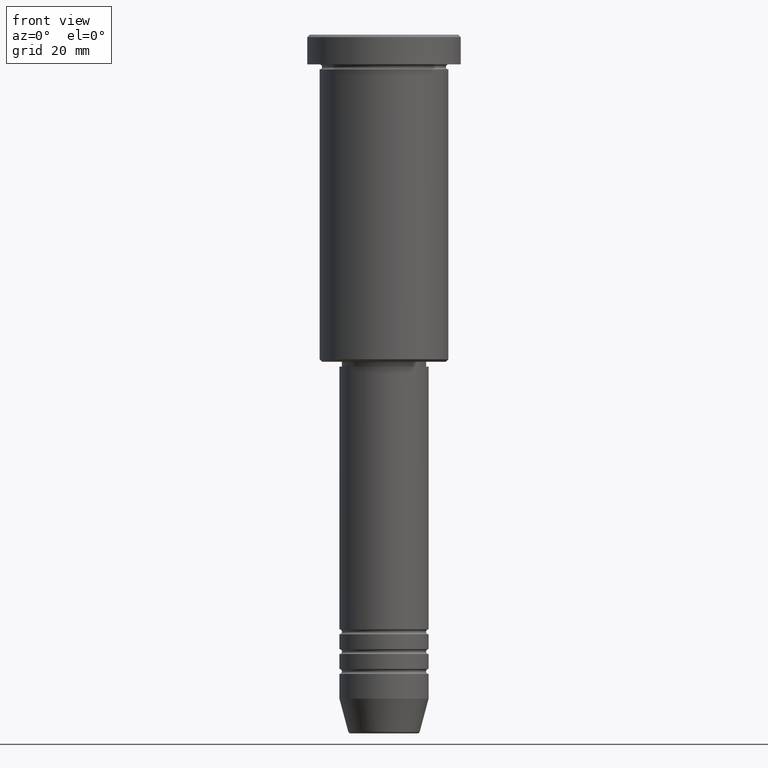
[diagram: clean part render]
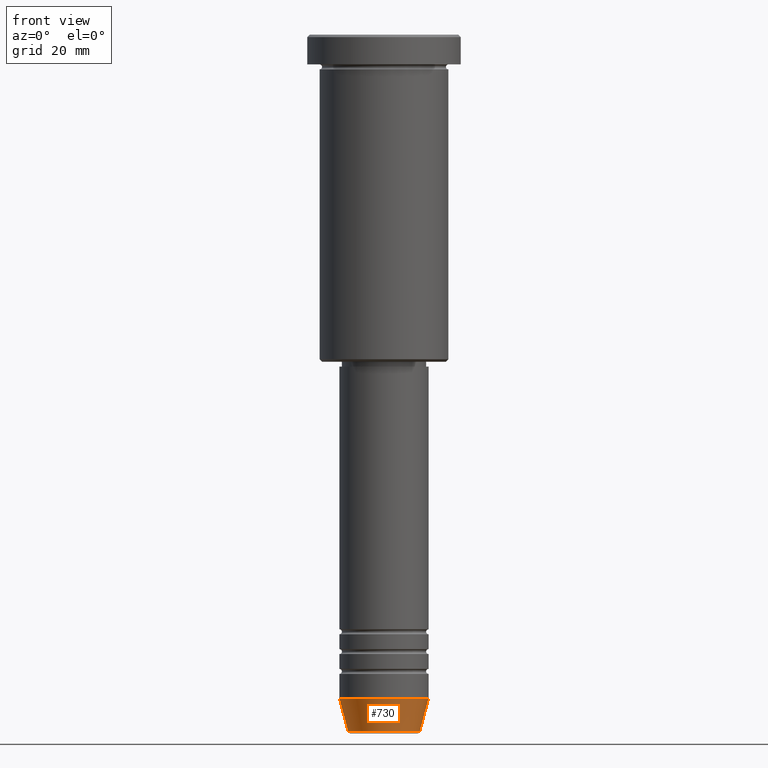
[diagram: same view with one face highlighted and labeled with its STEP entity id]
A machine part, front view. The second image highlights one B-rep face of the part: STEP entity #730.
In plain terms, the highlighted conical surface has half-angle 15 deg.
Its self-contained STEP definition (entity closure, byte-faithful):
#10 = CIRCLE ( 'NONE', #48, 7.223655072137188604 ) ;
#38 = VERTEX_POINT ( 'NONE', #823 ) ;
#48 = AXIS2_PLACEMENT_3D ( 'NONE', #744, #271, #482 ) ;
#64 = CARTESIAN_POINT ( 'NONE',  ( 0.000000000000000000, 0.000000000000000000, -134.0000000000000000 ) ) ;
#83 = EDGE_CURVE ( 'NONE', #404, #38, #848, .T. ) ;
#115 = ORIENTED_EDGE ( 'NONE', *, *, #83, .F. ) ;
#234 = CARTESIAN_POINT ( 'NONE',  ( -9.000000000000000000, 1.102182119232617714E-15, -134.0000000000000000 ) ) ;
#256 = VECTOR ( 'NONE', #1043, 1000.000000000000000 ) ;
#271 = DIRECTION ( 'NONE',  ( -0.000000000000000000, -0.000000000000000000, 1.000000000000000000 ) ) ;
#290 = DIRECTION ( 'NONE',  ( 1.000000000000000000, 0.000000000000000000, 0.000000000000000000 ) ) ;
#302 = EDGE_LOOP ( 'NONE', ( #1179, #592, #1105, #115 ) ) ;
#325 = DIRECTION ( 'NONE',  ( -0.2588190451025213501, 3.169619151431772337E-17, 0.9659258262890680902 ) ) ;
#404 = VERTEX_POINT ( 'NONE', #791 ) ;
#417 = DIRECTION ( 'NONE',  ( -0.000000000000000000, -0.000000000000000000, 1.000000000000000000 ) ) ;
#418 = CARTESIAN_POINT ( 'NONE',  ( 7.223655072137188604, 0.000000000000000000, -140.6294095225512990 ) ) ;
#428 = AXIS2_PLACEMENT_3D ( 'NONE', #645, #417, #505 ) ;
#464 = EDGE_CURVE ( 'NONE', #572, #404, #1048, .T. ) ;
#482 = DIRECTION ( 'NONE',  ( 1.000000000000000000, 0.000000000000000000, 0.000000000000000000 ) ) ;
#505 = DIRECTION ( 'NONE',  ( 1.000000000000000000, 0.000000000000000000, 0.000000000000000000 ) ) ;
#525 = CARTESIAN_POINT ( 'NONE',  ( -7.223655072137189492, 9.934123627281765110E-16, -140.6294095225512990 ) ) ;
#572 = VERTEX_POINT ( 'NONE', #525 ) ;
#586 = EDGE_CURVE ( 'NONE', #572, #1110, #10, .T. ) ;
#592 = ORIENTED_EDGE ( 'NONE', *, *, #586, .T. ) ;
#637 = CONICAL_SURFACE ( 'NONE', #1040, 9.000000000000000000, 0.2617993877991500740 ) ;
#645 = CARTESIAN_POINT ( 'NONE',  ( 0.000000000000000000, 0.000000000000000000, -134.0000000000000000 ) ) ;
#675 = LINE ( 'NONE', #1022, #256 ) ;
#730 = ADVANCED_FACE ( 'NONE', ( #997 ), #637, .T. ) ;
#744 = CARTESIAN_POINT ( 'NONE',  ( 0.000000000000000000, 0.000000000000000000, -140.6294095225512990 ) ) ;
#767 = VECTOR ( 'NONE', #325, 1000.000000000000000 ) ;
#791 = CARTESIAN_POINT ( 'NONE',  ( -9.000000000000000000, 1.102182119232617714E-15, -134.0000000000000000 ) ) ;
#823 = CARTESIAN_POINT ( 'NONE',  ( 9.000000000000000000, 0.000000000000000000, -134.0000000000000000 ) ) ;
#848 = CIRCLE ( 'NONE', #428, 9.000000000000000000 ) ;
#997 = FACE_OUTER_BOUND ( 'NONE', #302, .T. ) ;
#1002 = DIRECTION ( 'NONE',  ( -0.000000000000000000, -0.000000000000000000, 1.000000000000000000 ) ) ;
#1022 = CARTESIAN_POINT ( 'NONE',  ( 9.000000000000000000, 0.000000000000000000, -134.0000000000000000 ) ) ;
#1040 = AXIS2_PLACEMENT_3D ( 'NONE', #64, #1002, #290 ) ;
#1043 = DIRECTION ( 'NONE',  ( 0.2588190451025213501, 0.000000000000000000, 0.9659258262890680902 ) ) ;
#1048 = LINE ( 'NONE', #234, #767 ) ;
#1091 = EDGE_CURVE ( 'NONE', #1110, #38, #675, .T. ) ;
#1105 = ORIENTED_EDGE ( 'NONE', *, *, #1091, .T. ) ;
#1110 = VERTEX_POINT ( 'NONE', #418 ) ;
#1179 = ORIENTED_EDGE ( 'NONE', *, *, #464, .F. ) ;